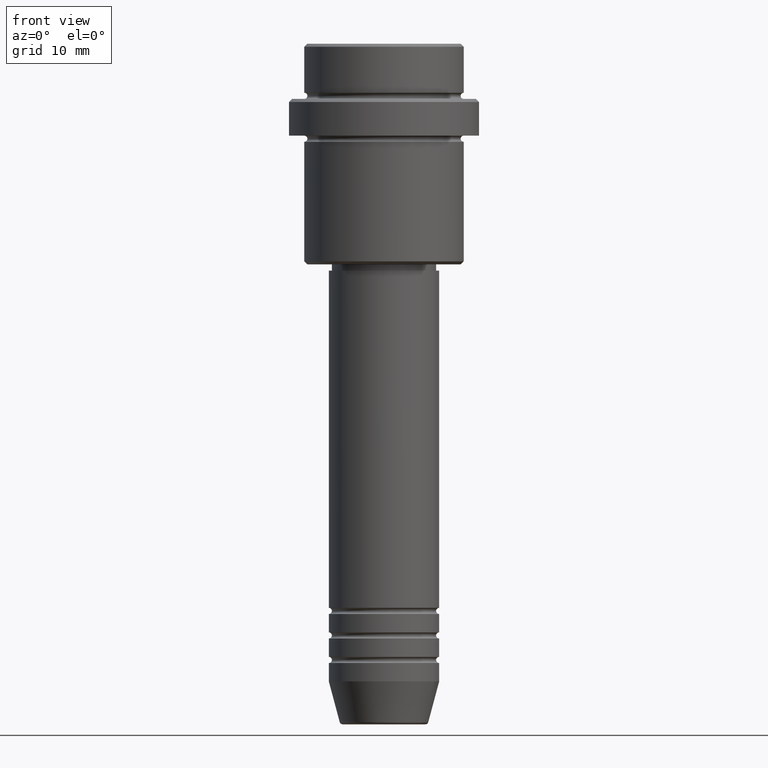
[diagram: clean part render]
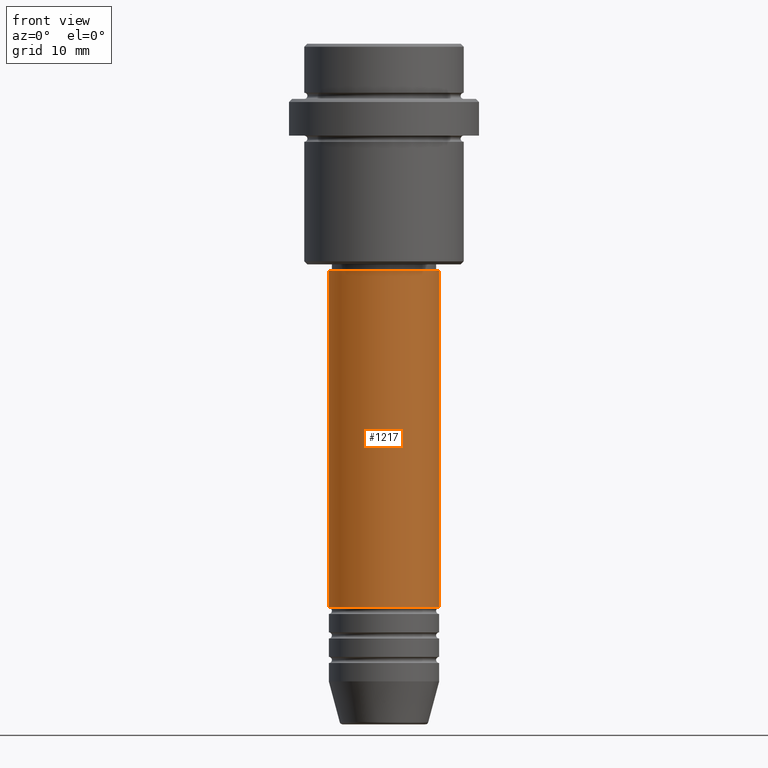
[diagram: same view with one face highlighted and labeled with its STEP entity id]
A machine part, front view. The second image highlights one B-rep face of the part: STEP entity #1217.
In plain terms, the highlighted cylindrical surface (partial cylindrical patch) has radius 9 mm, axis along (-0, -0, 1).
Its self-contained STEP definition (entity closure, byte-faithful):
#36 = CARTESIAN_POINT ( 'NONE',  ( 9.000000000000000000, 0.000000000000000000, -91.99999999999988631 ) ) ;
#119 = DIRECTION ( 'NONE',  ( 1.000000000000000000, 0.000000000000000000, 0.000000000000000000 ) ) ;
#160 = AXIS2_PLACEMENT_3D ( 'NONE', #554, #990, #119 ) ;
#274 = AXIS2_PLACEMENT_3D ( 'NONE', #1342, #907, #890 ) ;
#320 = LINE ( 'NONE', #1167, #969 ) ;
#338 = CIRCLE ( 'NONE', #274, 9.000000000000000000 ) ;
#347 = DIRECTION ( 'NONE',  ( 1.000000000000000000, 0.000000000000000000, 0.000000000000000000 ) ) ;
#404 = CIRCLE ( 'NONE', #160, 9.000000000000001776 ) ;
#465 = FACE_OUTER_BOUND ( 'NONE', #533, .T. ) ;
#487 = CARTESIAN_POINT ( 'NONE',  ( 0.000000000000000000, 0.000000000000000000, 0.000000000000000000 ) ) ;
#533 = EDGE_LOOP ( 'NONE', ( #1384, #912, #720, #1313 ) ) ;
#554 = CARTESIAN_POINT ( 'NONE',  ( 0.000000000000000000, 0.000000000000000000, -37.00000000000002132 ) ) ;
#628 = DIRECTION ( 'NONE',  ( -0.000000000000000000, -0.000000000000000000, 1.000000000000000000 ) ) ;
#720 = ORIENTED_EDGE ( 'NONE', *, *, #1417, .T. ) ;
#748 = EDGE_CURVE ( 'NONE', #896, #1042, #404, .T. ) ;
#778 = VERTEX_POINT ( 'NONE', #36 ) ;
#805 = CARTESIAN_POINT ( 'NONE',  ( -9.000000000000001776, 1.102182119232617911E-15, -37.00000000000002132 ) ) ;
#890 = DIRECTION ( 'NONE',  ( 1.000000000000000000, 0.000000000000000000, 0.000000000000000000 ) ) ;
#895 = CYLINDRICAL_SURFACE ( 'NONE', #905, 9.000000000000001776 ) ;
#896 = VERTEX_POINT ( 'NONE', #805 ) ;
#905 = AXIS2_PLACEMENT_3D ( 'NONE', #487, #913, #347 ) ;
#907 = DIRECTION ( 'NONE',  ( -0.000000000000000000, -0.000000000000000000, 1.000000000000000000 ) ) ;
#912 = ORIENTED_EDGE ( 'NONE', *, *, #1109, .T. ) ;
#913 = DIRECTION ( 'NONE',  ( -0.000000000000000000, -0.000000000000000000, 1.000000000000000000 ) ) ;
#969 = VECTOR ( 'NONE', #628, 1000.000000000000000 ) ;
#983 = EDGE_CURVE ( 'NONE', #1353, #896, #1294, .T. ) ;
#990 = DIRECTION ( 'NONE',  ( -0.000000000000000000, -0.000000000000000000, 1.000000000000000000 ) ) ;
#1031 = CARTESIAN_POINT ( 'NONE',  ( -9.000000000000000000, 1.102182119232617714E-15, -91.99999999999988631 ) ) ;
#1042 = VERTEX_POINT ( 'NONE', #1187 ) ;
#1068 = DIRECTION ( 'NONE',  ( -0.000000000000000000, -0.000000000000000000, 1.000000000000000000 ) ) ;
#1109 = EDGE_CURVE ( 'NONE', #1353, #778, #338, .T. ) ;
#1167 = CARTESIAN_POINT ( 'NONE',  ( 9.000000000000001776, 0.000000000000000000, 0.000000000000000000 ) ) ;
#1180 = CARTESIAN_POINT ( 'NONE',  ( -9.000000000000001776, 1.102182119232617911E-15, 0.000000000000000000 ) ) ;
#1187 = CARTESIAN_POINT ( 'NONE',  ( 9.000000000000001776, 0.000000000000000000, -37.00000000000002132 ) ) ;
#1217 = ADVANCED_FACE ( 'NONE', ( #465 ), #895, .T. ) ;
#1294 = LINE ( 'NONE', #1180, #1348 ) ;
#1313 = ORIENTED_EDGE ( 'NONE', *, *, #748, .F. ) ;
#1342 = CARTESIAN_POINT ( 'NONE',  ( 0.000000000000000000, 0.000000000000000000, -91.99999999999988631 ) ) ;
#1348 = VECTOR ( 'NONE', #1068, 1000.000000000000000 ) ;
#1353 = VERTEX_POINT ( 'NONE', #1031 ) ;
#1384 = ORIENTED_EDGE ( 'NONE', *, *, #983, .F. ) ;
#1417 = EDGE_CURVE ( 'NONE', #778, #1042, #320, .T. ) ;